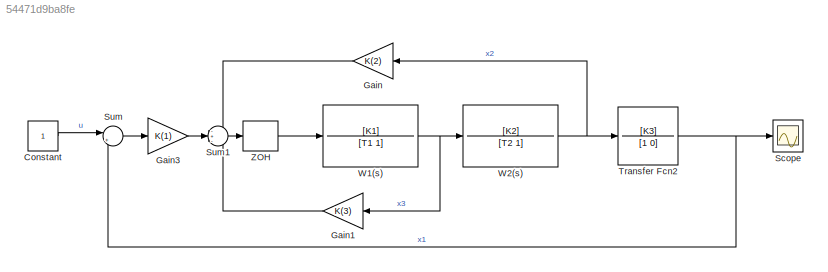
MODEL slx_54471d9ba8fe
KIND model
CONFIG AbsTol = auto
CONFIG EnableMultiTasking = off
CONFIG FixedStep = T/1000
CONFIG MaxStep = auto
CONFIG MinStep = auto
CONFIG RelTol = 1e-3
CONFIG SampleTimeConstraint = Unconstrained
CONFIG SolverName = ode3
CONFIG StartTime = 0.0
CONFIG StopTime = Tmdl
BLOCK [Constant] Constant
BLOCK [Gain] Gain
  Gain = K(2)
  NameLocation = top
BLOCK [Gain] Gain1
  Gain = K(3)
  NameLocation = top
BLOCK [Gain] Gain3
  Gain = K(1)
BLOCK [Scope] Scope
  Floating = off
  NumInputPorts = 1
  ScopeSpecificationString = Simulink.scopes.TimeScopeBlockCfg('CurrentConfiguration', extmgr.ConfigurationSet(extmgr.Configuration('Core','General UI',true),extmgr.Configuration('Core','Source UI',true),extmgr.Configuration('Sources','WiredSimulink',true,'DataLogging',true,'DataLoggingVariableName','y','DataLoggingSaveFormat','StructureWithTime'),extmgr.Configuration('Visuals','Time Domain',true,'SerializedDisplays',{struct(...<+1485ch>
BLOCK [Sum] Sum
  Inputs = |+-
BLOCK [Sum] Sum1
  Inputs = -+-
BLOCK [TransferFcn] Transfer Fcn2
  Denominator = [1 0]
  Numerator = [K3]
BLOCK [TransferFcn] W1(s)
  Denominator = [T1 1]
  Numerator = [K1]
BLOCK [TransferFcn] W2(s)
  Denominator = [T2 1]
  Numerator = [K2]
BLOCK [ZeroOrderHold] ZOH
  SampleTime = -1
LINE Constant:1 -> Sum:1
LINE Gain1:1 -> Sum1:3
LINE Gain3:1 -> Sum1:2
LINE Gain:1 -> Sum1:1
LINE Sum1:1 -> ZOH:1
LINE Sum:1 -> Gain3:1
NET Transfer Fcn2:1 -> Scope:1, Sum:2
NET W1(s):1 -> Gain1:1, W2(s):1
NET W2(s):1 -> Gain:1, Transfer Fcn2:1
LINE ZOH:1 -> W1(s):1
note: NET lines group one-source signal fan-out (src -> all destinations, sorted); 1:1 wires keep LINE
